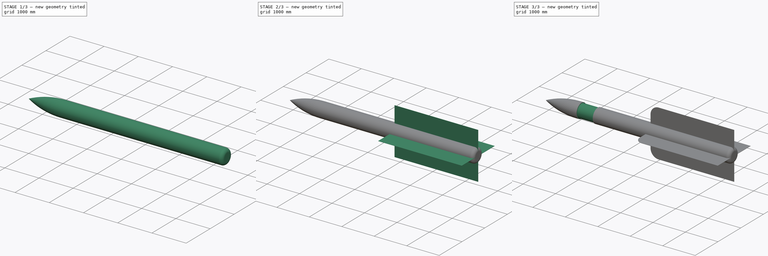
[diagram: build sequence overview — one tinted view per stage of 3, left to right]
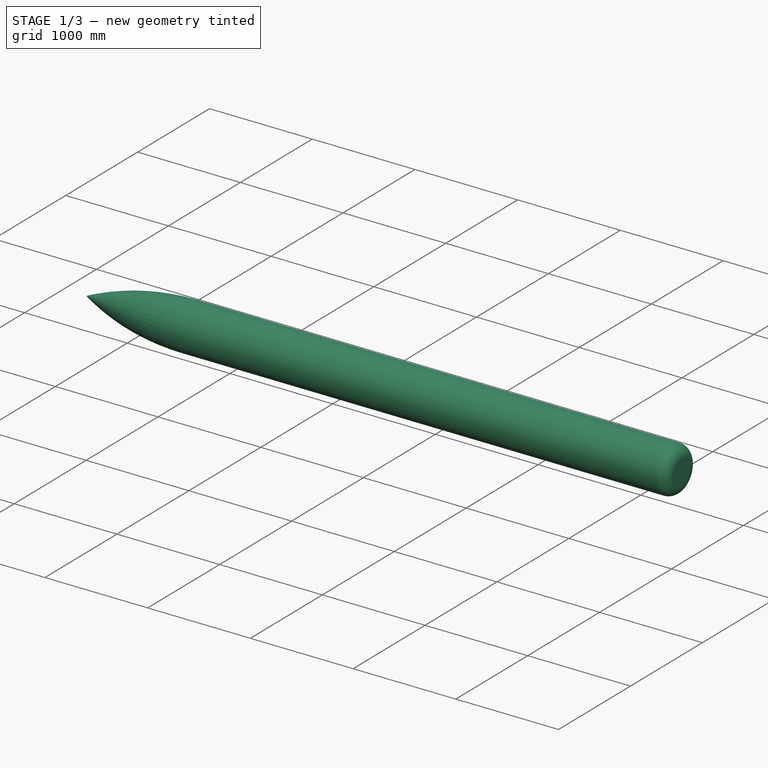
[diagram: stage 1 of 3 — iso view after this stage's code; geometry added in this stage tinted green]
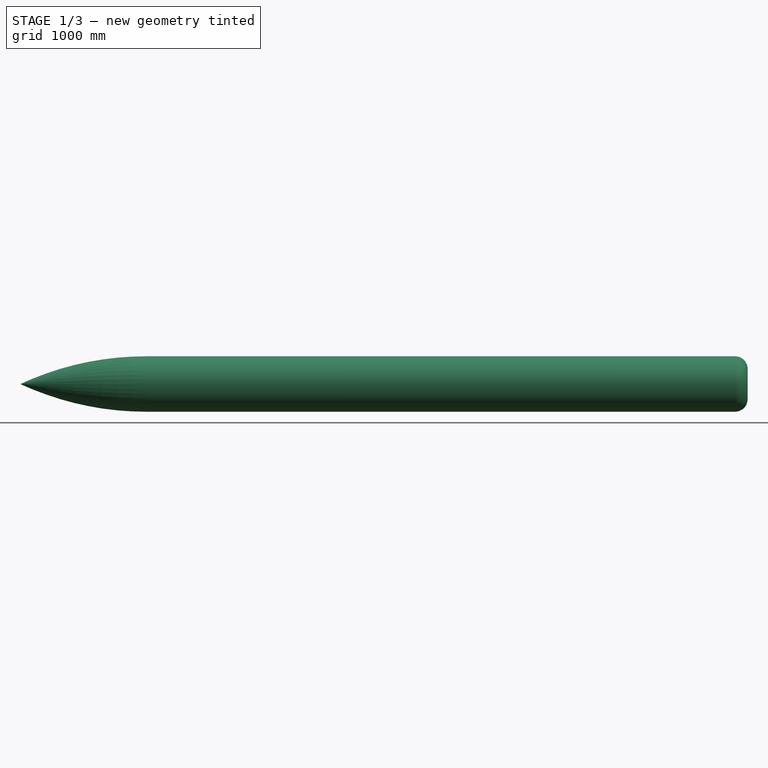
[diagram: stage 1 of 3 — front view after this stage's code; geometry added in this stage tinted green]
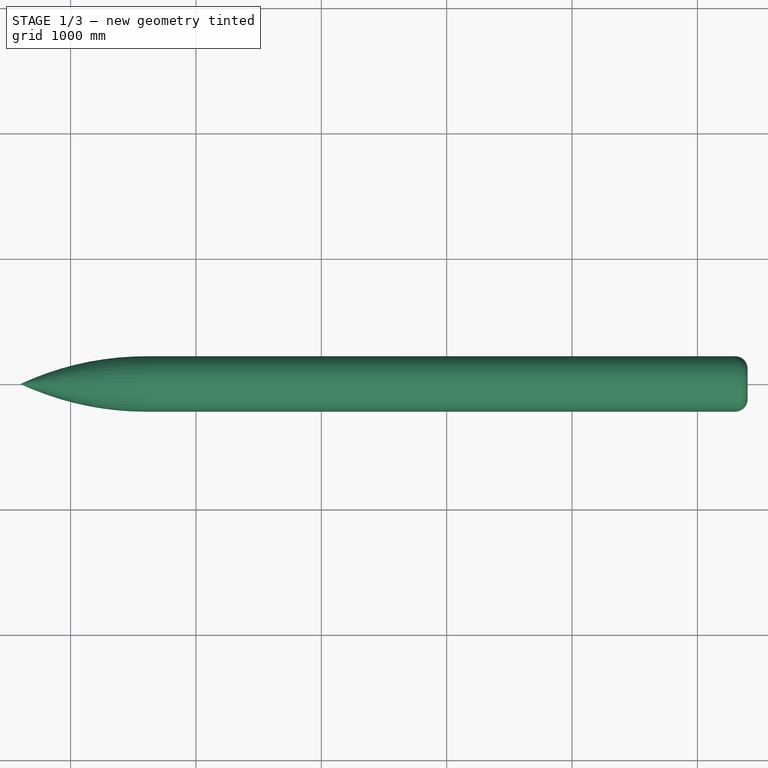
[diagram: stage 1 of 3 — top view after this stage's code; geometry added in this stage tinted green]
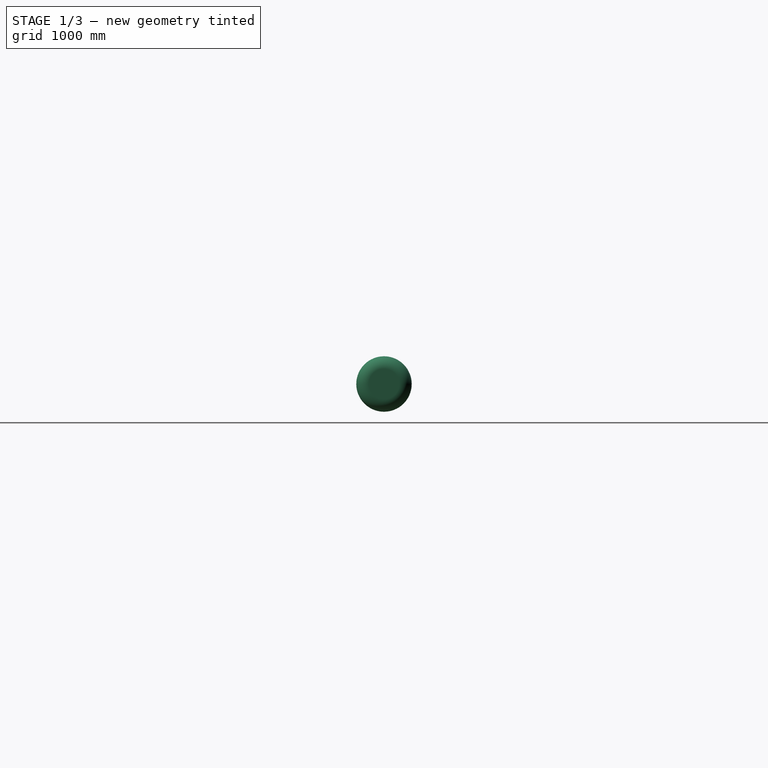
[diagram: stage 1 of 3 — right view after this stage's code; geometry added in this stage tinted green]
FCSTD DOCUMENT  (FreeCAD 0.18R16093 (Git))
Label: Body6
License: All rights reserved
LicenseURL: http://en.wikipedia.org/wiki/All_rights_reserved
objects: Sketcher::SketchObject×3, PartDesign::Fillet×2, PartDesign::Revolution×1, PartDesign::Pad×1, PartDesign::PolarPattern×1, PartDesign::MultiTransform×1, PartDesign::Groove×1, PartDesign::Body×1
note: 14 computed .brp shape members not serialized (recipe doc carries the construction recipe); baked Part::Feature solids carry a one-line shape summary decoded from their .brp

FEATURE [Sketcher::SketchObject] Sketch
  MapMode = 5
  Support = -> [XY_Plane]
  sketch-geometry (6):
    g0: LineSegment StartX=-2400 StartY=221 StartZ=0 EndX=2400 EndY=221 EndZ=0
    g1: LineSegment StartX=2400 StartY=221 StartZ=0 EndX=2400 EndY=0 EndZ=0
    g2: LineSegment StartX=2400 StartY=0 StartZ=0 EndX=-2400 EndY=0 EndZ=0
    g3: LineSegment [constr] StartX=-2400 StartY=0 StartZ=0 EndX=-2400 EndY=221 EndZ=0
    g4: ArcOfCircle CenterX=-2400 CenterY=-2151.94 CenterZ=0 NormalX=0 NormalY=0 NormalZ=1 AngleXU=0 Radius=2372.94 StartAngle=1.5708 EndAngle=2.0058
    g5: LineSegment StartX=-3400 StartY=-1.59162e-11 StartZ=0 EndX=-2400 EndY=0 EndZ=0
  constraints (17):
    c: Coincident(g0,g1)
    c: Coincident(g1,g2)
    c: Coincident(g2,g3)
    c: Coincident(g3,g0)
    c: Horizontal(g0)
    c: Vertical(g1)
    c: Vertical(g3)
    c: Distance(g1) = 221
    c: Distance(g0) = 4800
    c: PointOnObject(g-1,g2)
    c: Symmetric(g2,g1,g-2)
    c: Coincident(g4,g0)
    c: PointOnObject(g4,g-1)
    c: PointOnObject(g4,g3)
    c: Distance(g4,g2) = 1000
    c: Coincident(g5,g2)
    c: Coincident(g5,g4)
FEATURE [PartDesign::Revolution] Revolution
  Angle = 360
  Axis = (1,0,0)
  Base = (0,0,0)
  Profile = -> Sketch
  ReferenceAxis = -> Sketch [H_Axis]
  Refine = true
FEATURE [PartDesign::Fillet] Fillet
  Base = -> Revolution [Edge2]
  BaseFeature = -> Revolution
  Radius = 100
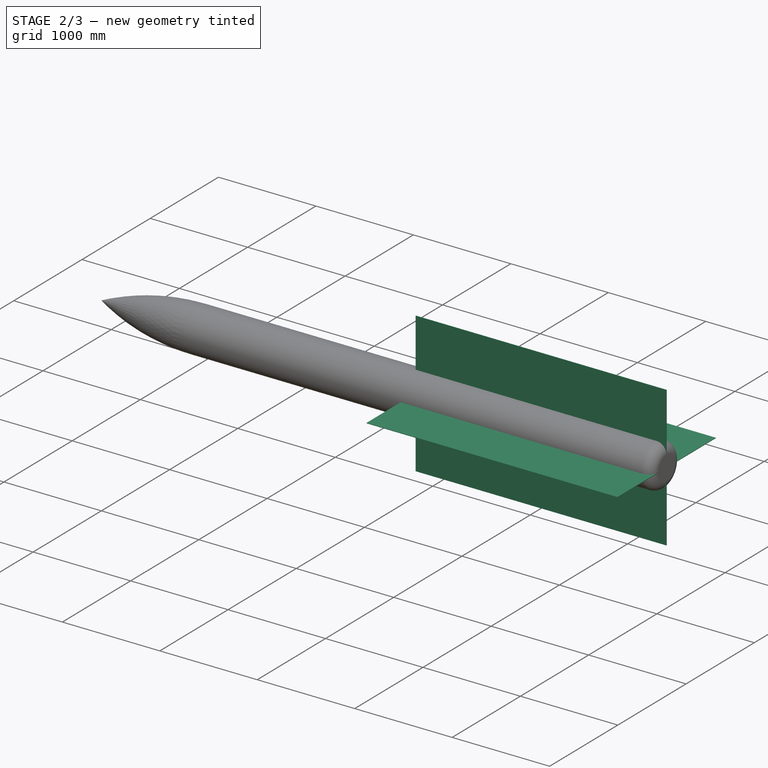
[diagram: stage 2 of 3 — iso view after this stage's code; geometry added in this stage tinted green]
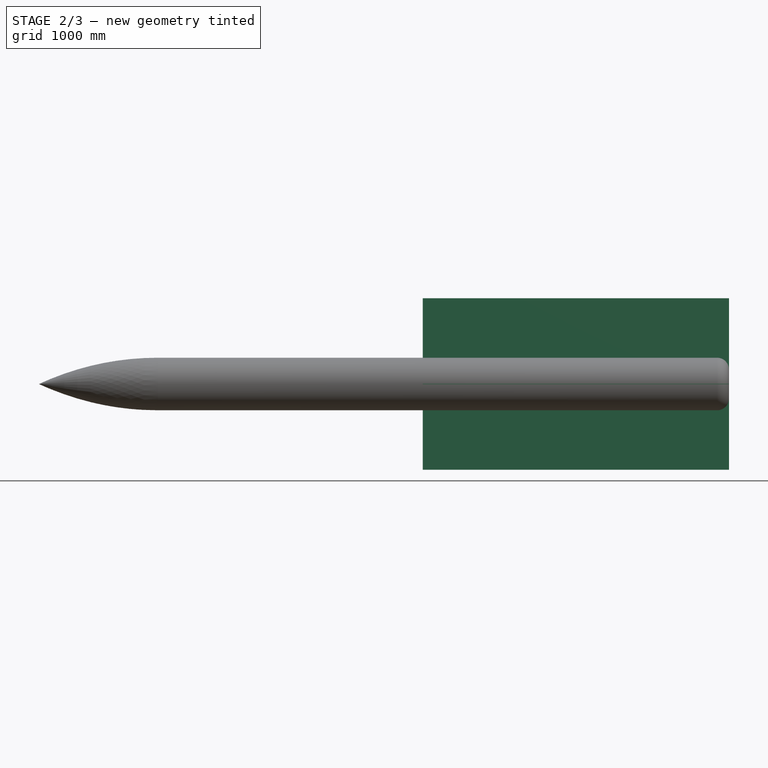
[diagram: stage 2 of 3 — front view after this stage's code; geometry added in this stage tinted green]
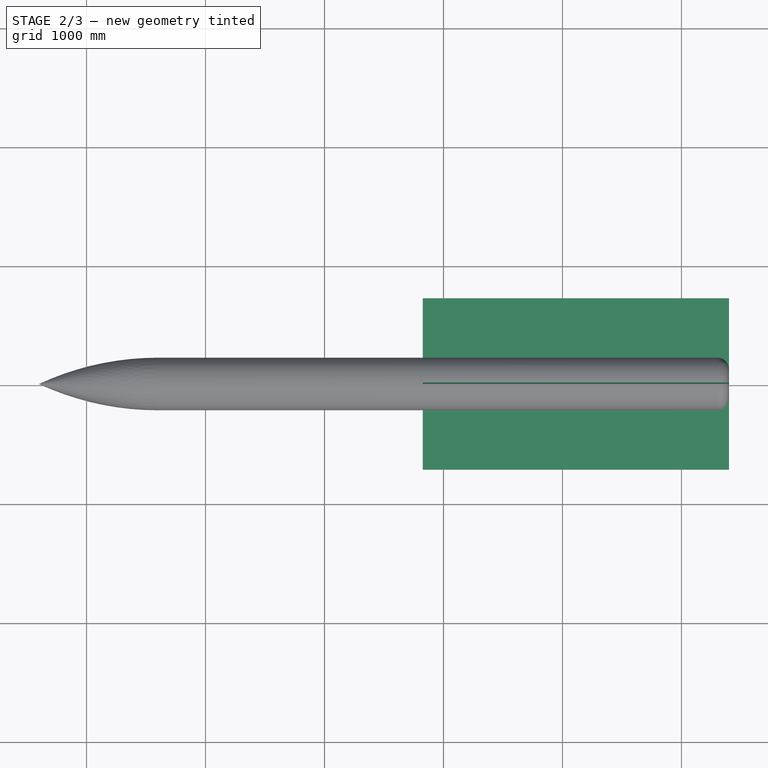
[diagram: stage 2 of 3 — top view after this stage's code; geometry added in this stage tinted green]
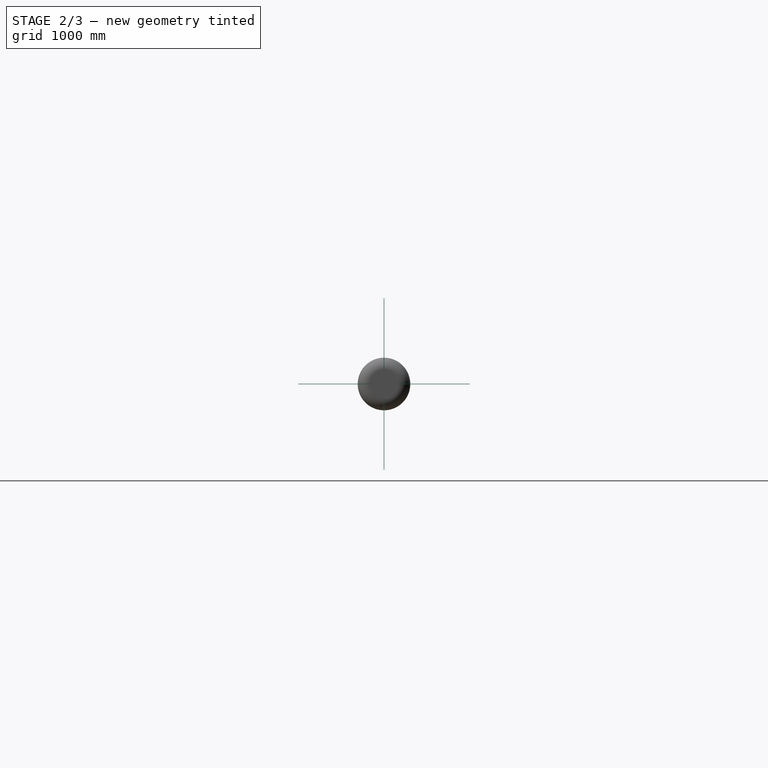
[diagram: stage 2 of 3 — right view after this stage's code; geometry added in this stage tinted green]
FEATURE [Sketcher::SketchObject] Sketch001
  ExternalGeometry = -> [Fillet]
  MapMode = 5
  Support = -> [XY_Plane]
  expr: Constraints[11] = 442 / 2 + 500
  sketch-geometry (4):
    g0: LineSegment StartX=-174 StartY=721 StartZ=0 EndX=2400 EndY=721 EndZ=0
    g1: LineSegment StartX=2400 StartY=721 StartZ=0 EndX=2400 EndY=0 EndZ=0
    g2: LineSegment StartX=2400 StartY=0 StartZ=0 EndX=-174 EndY=0 EndZ=0
    g3: LineSegment StartX=-174 StartY=0 StartZ=0 EndX=-174 EndY=721 EndZ=0
  constraints (12):
    c: Coincident(g0,g1)
    c: Coincident(g1,g2)
    c: Coincident(g2,g3)
    c: Coincident(g3,g0)
    c: Horizontal(g0)
    c: Horizontal(g2)
    c: Vertical(g1)
    c: Vertical(g3)
    c: PointOnObject(g1,g-1)
    c: PointOnObject(g1,g-3)
    c: Distance(g0) = 2574
    c: Distance(g1) = 721
FEATURE [PartDesign::Pad] Pad
  BaseFeature = -> Fillet
  Length = 5
  Length2 = 100
  Midplane = true
  Profile = -> Sketch001
  Refine = true
  Type = 0
FEATURE [PartDesign::PolarPattern] PolarPattern
  Angle = 360
  Axis = -> Sketch001 [H_Axis]
  Occurrences = 4
  Refine = true
FEATURE [PartDesign::MultiTransform] MultiTransform
  BaseFeature = -> Pad
  Originals = -> [Pad]
  Refine = true
  Transformations = -> [PolarPattern]
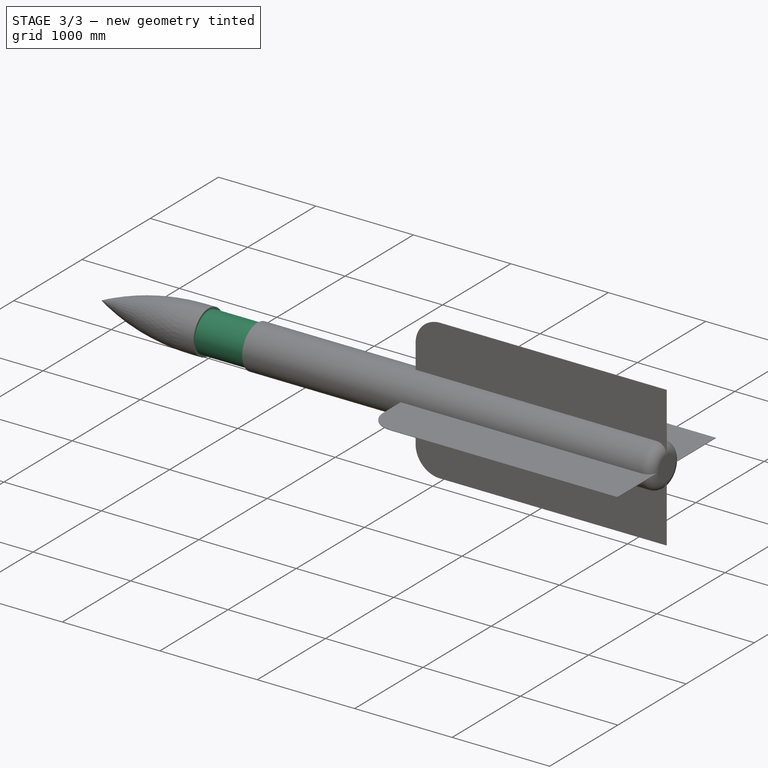
[diagram: stage 3 of 3 — iso view after this stage's code; geometry added in this stage tinted green]
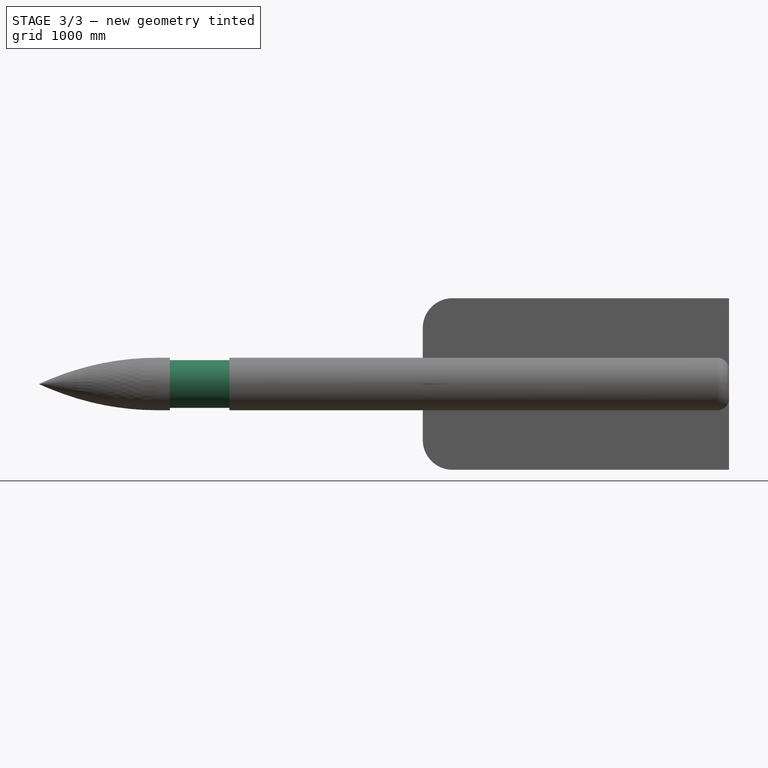
[diagram: stage 3 of 3 — front view after this stage's code; geometry added in this stage tinted green]
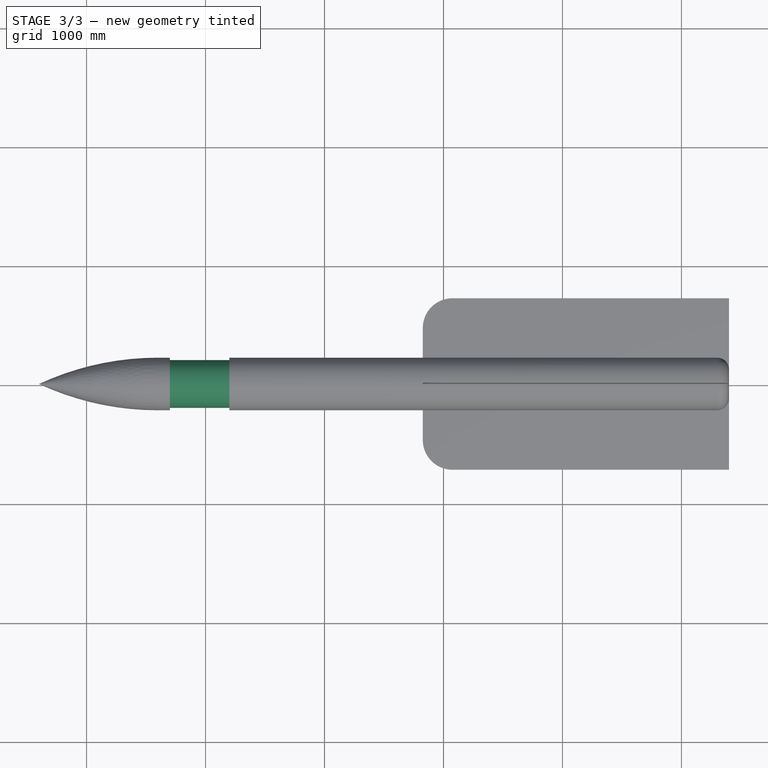
[diagram: stage 3 of 3 — top view after this stage's code; geometry added in this stage tinted green]
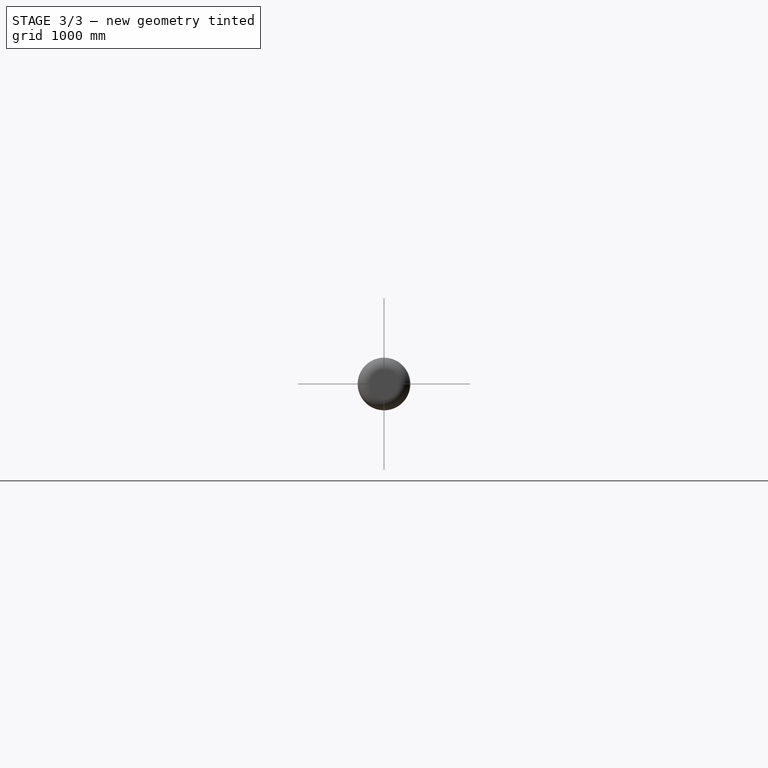
[diagram: stage 3 of 3 — right view after this stage's code; geometry added in this stage tinted green]
FEATURE [PartDesign::Fillet] Fillet001
  Base = -> MultiTransform [Edge31,Edge21,Edge41,Edge51]
  BaseFeature = -> MultiTransform
  Radius = 250
FEATURE [Sketcher::SketchObject] Sketch002
  MapMode = 5
  Support = -> [XY_Plane]
  expr: Constraints[10] = 442 / 2 - 20
  sketch-geometry (4):
    g0: LineSegment StartX=-2300 StartY=201 StartZ=0 EndX=-1800 EndY=201 EndZ=0
    g1: LineSegment StartX=-1800 StartY=201 StartZ=0 EndX=-1800 EndY=221 EndZ=0
    g2: LineSegment StartX=-1800 StartY=221 StartZ=0 EndX=-2300 EndY=221 EndZ=0
    g3: LineSegment StartX=-2300 StartY=221 StartZ=0 EndX=-2300 EndY=201 EndZ=0
  constraints (12):
    c: Coincident(g0,g1)
    c: Coincident(g1,g2)
    c: Coincident(g2,g3)
    c: Coincident(g3,g0)
    c: Horizontal(g0)
    c: Horizontal(g2)
    c: Vertical(g1)
    c: Vertical(g3)
    c: Distance(g0) = 500
    c: Distance(g1) = 20
    c: DistanceY(g-1,g0) = 201
    c: DistanceX(g-2,g1) = -1800
FEATURE [PartDesign::Groove] Groove
  Angle = 360
  Axis = (1,0,0)
  Base = (0,0,0)
  BaseFeature = -> Fillet001
  Profile = -> Sketch002
  ReferenceAxis = -> Sketch002 [H_Axis]
  Refine = true
  Reversed = true
FEATURE [PartDesign::Body] Body
  Group = -> [Sketch,Revolution,Fillet,Sketch001,Pad,MultiTransform,PolarPattern,Fillet001,Sketch002,Groove]
  Origin = -> Origin
  Tip = -> Groove
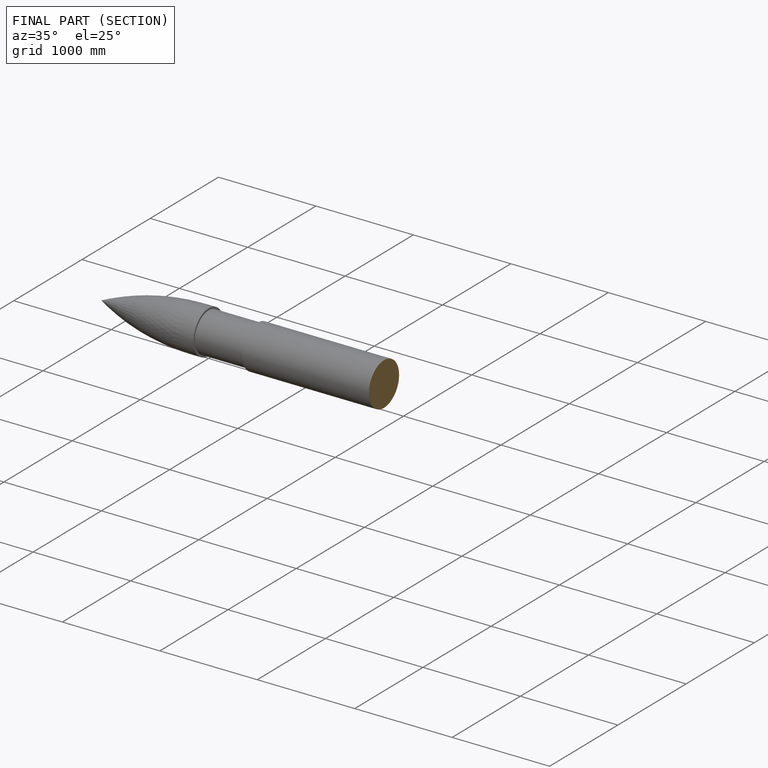
[diagram: finished part — half-section view (interior)]
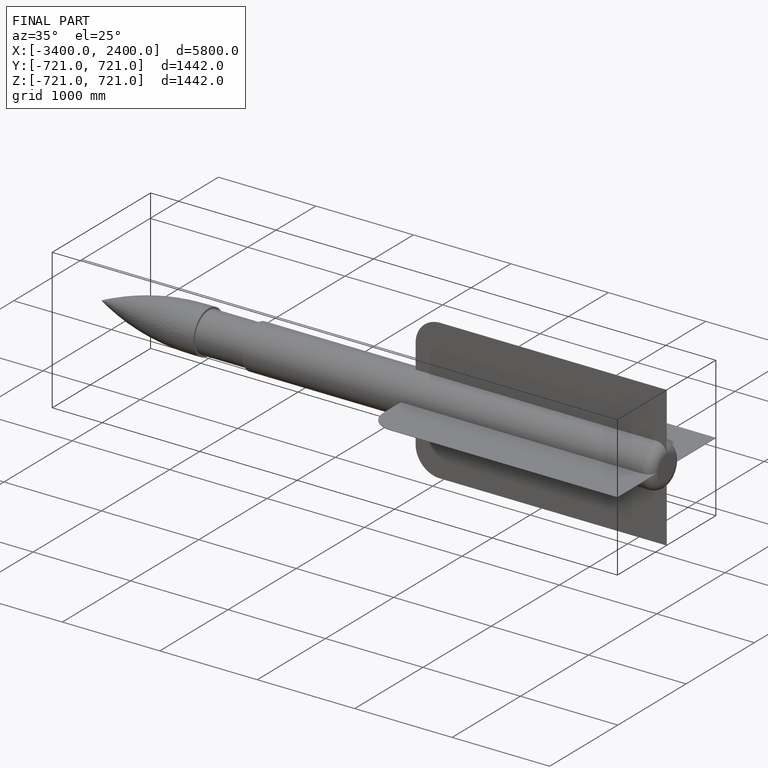
[diagram: finished part — iso view with bounding-box wireframe]
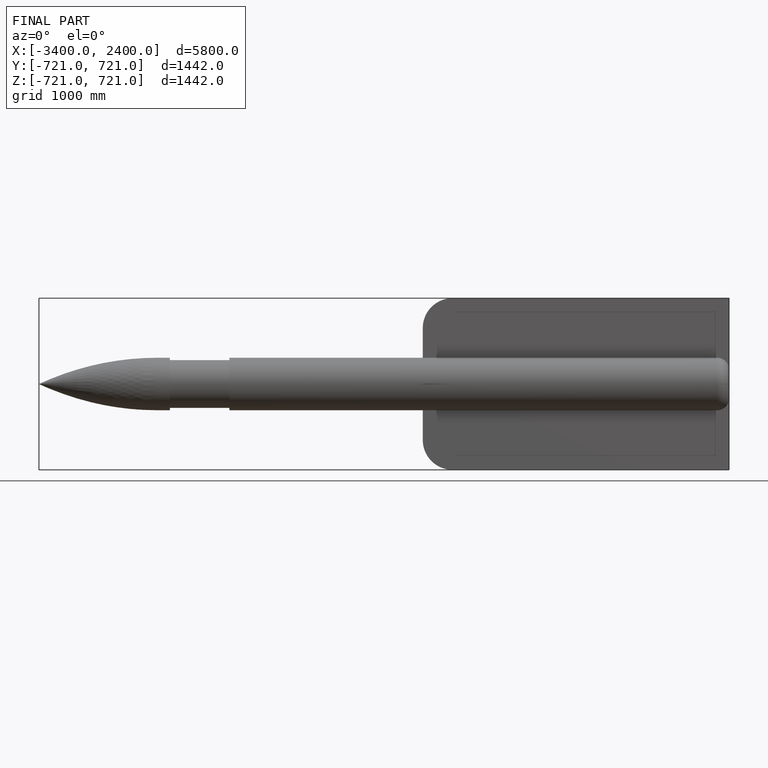
[diagram: finished part — front view with bounding-box wireframe]
